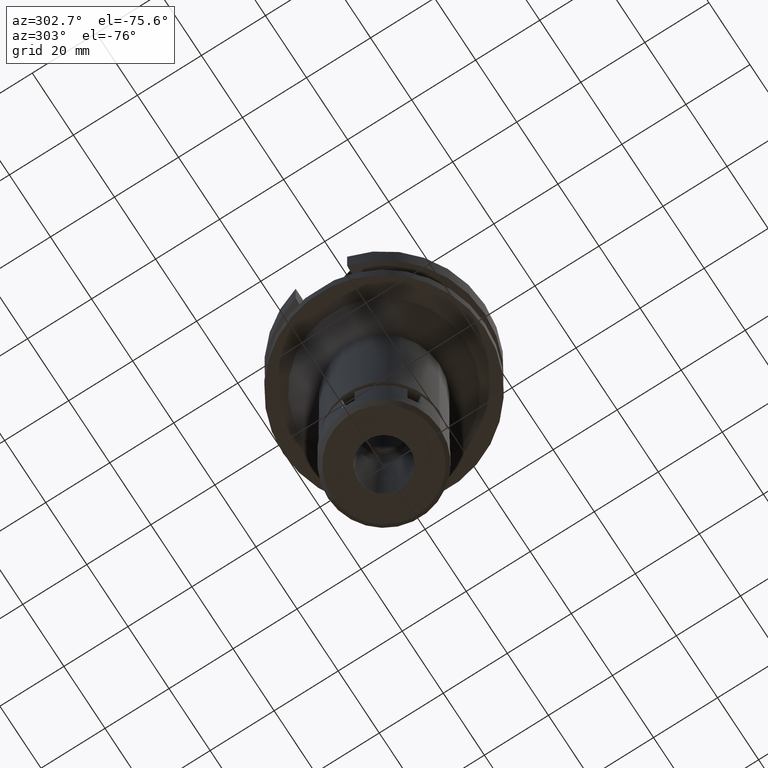
[diagram: clean part render]
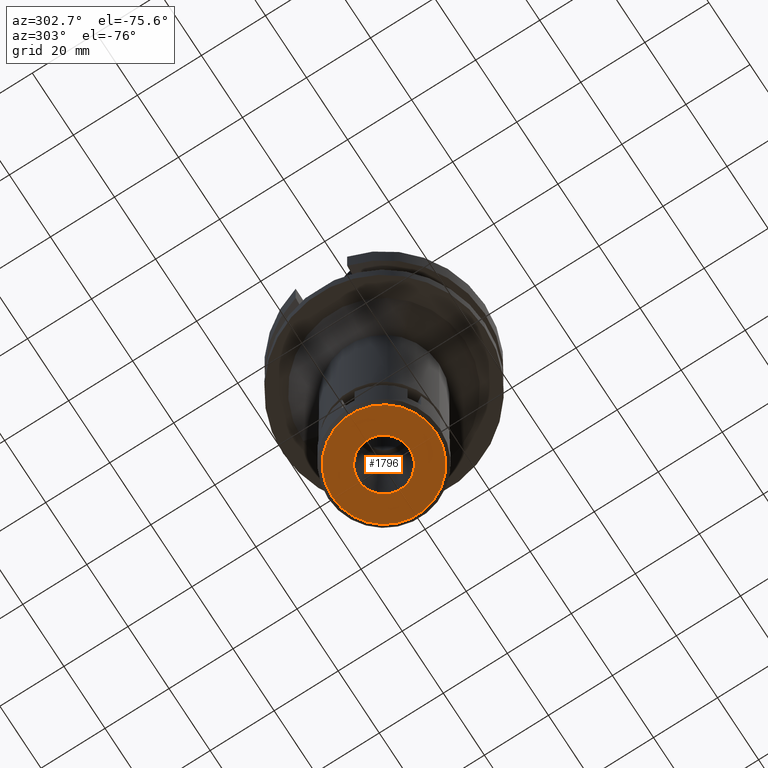
[diagram: same view with one face highlighted and labeled with its STEP entity id]
A machine part, auxiliary view. The second image highlights one B-rep face of the part: STEP entity #1796.
In plain terms, the highlighted planar face has unit normal (0, 0, -1).
Its self-contained STEP definition (entity closure, byte-faithful):
#65 = EDGE_CURVE ( 'NONE', #3351, #86, #1620, .T. ) ;
#86 = VERTEX_POINT ( 'NONE', #3485 ) ;
#135 = DIRECTION ( 'NONE',  ( 0.0000000000000000000, 0.0000000000000000000, 1.000000000000000000 ) ) ;
#426 = VERTEX_POINT ( 'NONE', #3651 ) ;
#483 = CARTESIAN_POINT ( 'NONE',  ( 0.0000000000000000000, 8.000000000000000000, -16.00000000000000000 ) ) ;
#584 = CIRCLE ( 'NONE', #1111, 8.000000000000000000 ) ;
#883 = ORIENTED_EDGE ( 'NONE', *, *, #3147, .F. ) ;
#918 = ORIENTED_EDGE ( 'NONE', *, *, #3517, .F. ) ;
#932 = VERTEX_POINT ( 'NONE', #3503 ) ;
#997 = DIRECTION ( 'NONE',  ( 0.0000000000000000000, 0.0000000000000000000, 1.000000000000000000 ) ) ;
#1034 = PLANE ( 'NONE',  #3588 ) ;
#1111 = AXIS2_PLACEMENT_3D ( 'NONE', #1421, #1696, #2559 ) ;
#1118 = CIRCLE ( 'NONE', #3016, 16.25000000000000000 ) ;
#1278 = DIRECTION ( 'NONE',  ( 0.0000000000000000000, 1.000000000000000000, 0.0000000000000000000 ) ) ;
#1295 = CIRCLE ( 'NONE', #1949, 16.25000000000000000 ) ;
#1350 = CARTESIAN_POINT ( 'NONE',  ( 0.0000000000000000000, 0.0000000000000000000, -16.00000000000000000 ) ) ;
#1401 = EDGE_LOOP ( 'NONE', ( #918, #883 ) ) ;
#1406 = ORIENTED_EDGE ( 'NONE', *, *, #2017, .F. ) ;
#1421 = CARTESIAN_POINT ( 'NONE',  ( 0.0000000000000000000, 0.0000000000000000000, -16.00000000000000000 ) ) ;
#1620 = CIRCLE ( 'NONE', #1802, 8.000000000000000000 ) ;
#1696 = DIRECTION ( 'NONE',  ( 0.0000000000000000000, 0.0000000000000000000, -1.000000000000000000 ) ) ;
#1796 = ADVANCED_FACE ( 'NONE', ( #2457, #3574 ), #1034, .T. ) ;
#1802 = AXIS2_PLACEMENT_3D ( 'NONE', #2578, #2502, #2931 ) ;
#1889 = DIRECTION ( 'NONE',  ( 0.0000000000000000000, 0.0000000000000000000, -1.000000000000000000 ) ) ;
#1949 = AXIS2_PLACEMENT_3D ( 'NONE', #2970, #135, #3558 ) ;
#2017 = EDGE_CURVE ( 'NONE', #86, #3351, #584, .T. ) ;
#2457 = FACE_OUTER_BOUND ( 'NONE', #1401, .T. ) ;
#2502 = DIRECTION ( 'NONE',  ( 0.0000000000000000000, 0.0000000000000000000, -1.000000000000000000 ) ) ;
#2559 = DIRECTION ( 'NONE',  ( 0.0000000000000000000, -1.000000000000000000, 0.0000000000000000000 ) ) ;
#2578 = CARTESIAN_POINT ( 'NONE',  ( 0.0000000000000000000, 0.0000000000000000000, -16.00000000000000000 ) ) ;
#2919 = CARTESIAN_POINT ( 'NONE',  ( 0.0000000000000000000, 0.0000000000000000000, -16.00000000000000000 ) ) ;
#2931 = DIRECTION ( 'NONE',  ( 0.0000000000000000000, 1.000000000000000000, 0.0000000000000000000 ) ) ;
#2970 = CARTESIAN_POINT ( 'NONE',  ( 0.0000000000000000000, 0.0000000000000000000, -16.00000000000000000 ) ) ;
#3016 = AXIS2_PLACEMENT_3D ( 'NONE', #2919, #997, #1278 ) ;
#3147 = EDGE_CURVE ( 'NONE', #426, #932, #1295, .T. ) ;
#3311 = ORIENTED_EDGE ( 'NONE', *, *, #65, .F. ) ;
#3351 = VERTEX_POINT ( 'NONE', #483 ) ;
#3484 = EDGE_LOOP ( 'NONE', ( #3311, #1406 ) ) ;
#3485 = CARTESIAN_POINT ( 'NONE',  ( 0.0000000000000000000, -8.000000000000000000, -16.00000000000000000 ) ) ;
#3503 = CARTESIAN_POINT ( 'NONE',  ( 0.0000000000000000000, 16.25000000000000000, -16.00000000000000000 ) ) ;
#3517 = EDGE_CURVE ( 'NONE', #932, #426, #1118, .T. ) ;
#3558 = DIRECTION ( 'NONE',  ( 0.0000000000000000000, -1.000000000000000000, 0.0000000000000000000 ) ) ;
#3574 = FACE_BOUND ( 'NONE', #3484, .T. ) ;
#3588 = AXIS2_PLACEMENT_3D ( 'NONE', #1350, #1889, #3620 ) ;
#3620 = DIRECTION ( 'NONE',  ( 0.0000000000000000000, -1.000000000000000000, 0.0000000000000000000 ) ) ;
#3651 = CARTESIAN_POINT ( 'NONE',  ( 0.0000000000000000000, -16.25000000000000000, -16.00000000000000000 ) ) ;